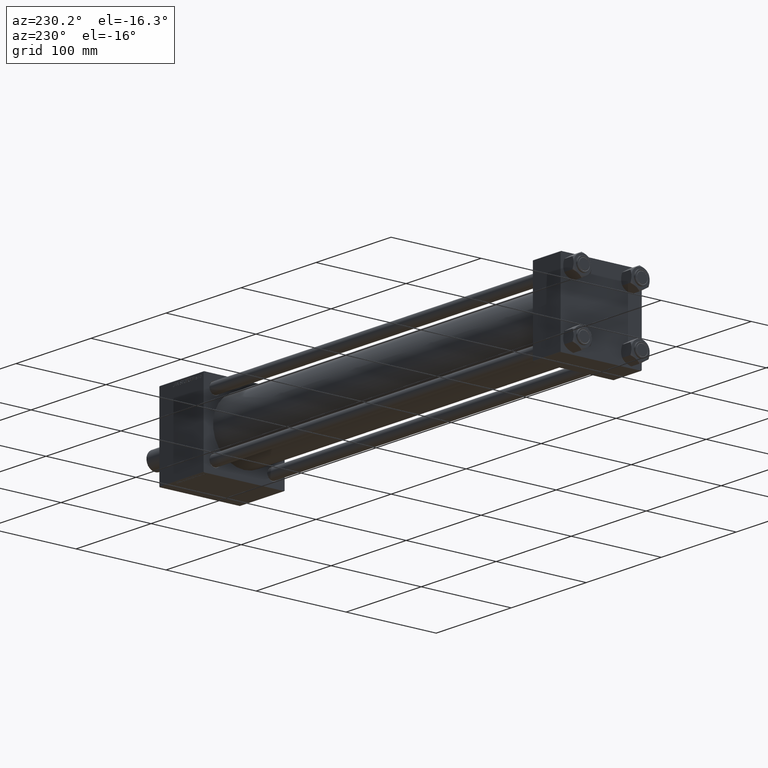
[diagram: clean part render]
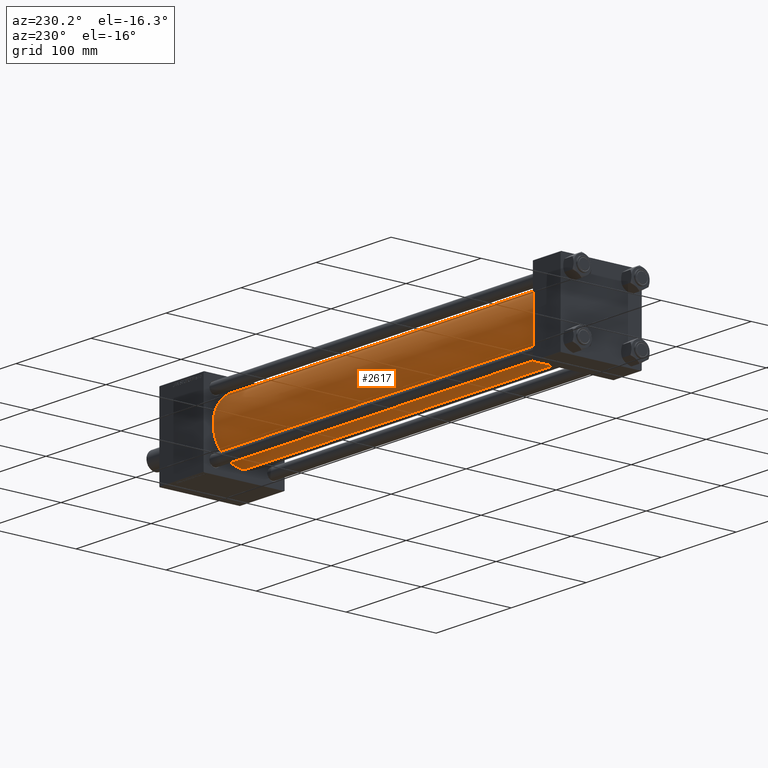
[diagram: same view with one face highlighted and labeled with its STEP entity id]
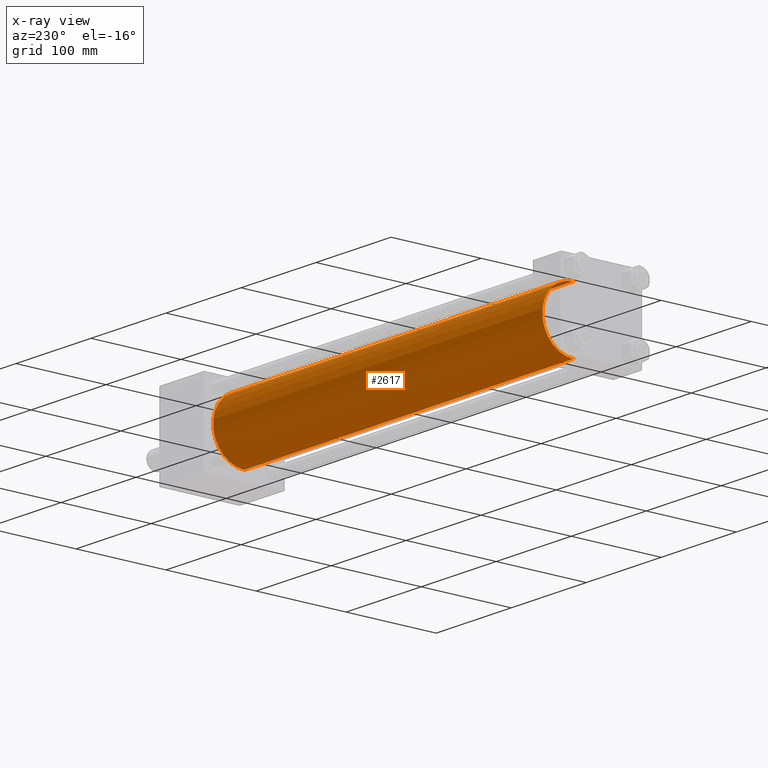
[diagram: x-ray of the same camera — body ghosted, the highlighted face saturated]
A machine part, auxiliary view. The second image highlights one B-rep face of the part: STEP entity #2617.
The next image is the same camera in x-ray: the body ghosted, the highlighted face saturated — about 0% of this face is hidden behind the body in this view.
In plain terms, the highlighted cylindrical surface (partial cylindrical patch) has radius 34.5 mm, axis along (-1, -0, -0).
Its self-contained STEP definition (entity closure, byte-faithful):
#2617 = ADVANCED_FACE ( 'NONE', ( #32635 ), #17274, .T. ) ;
#3806 = DIRECTION ( 'NONE',  ( 0.000000000000000000, 0.000000000000000000, 1.000000000000000000 ) ) ;
#3986 = CARTESIAN_POINT ( 'NONE',  ( 36.99999999999997868, 1.622946243093158675E-15, -34.50000000000000000 ) ) ;
#4529 = EDGE_CURVE ( 'NONE', #49904, #25687, #10082, .T. ) ;
#4587 = VECTOR ( 'NONE', #6335, 1000.000000000000000 ) ;
#6335 = DIRECTION ( 'NONE',  ( -1.000000000000000000, -0.000000000000000000, -0.000000000000000000 ) ) ;
#6473 = EDGE_LOOP ( 'NONE', ( #28750, #25308, #20534, #44355 ) ) ;
#8244 = CARTESIAN_POINT ( 'NONE',  ( 476.0000000000000000, -2.602085213965210642E-15, 34.50000000000000000 ) ) ;
#8428 = AXIS2_PLACEMENT_3D ( 'NONE', #24719, #24979, #3806 ) ;
#10082 = CIRCLE ( 'NONE', #8428, 34.50000000000000000 ) ;
#11519 = CARTESIAN_POINT ( 'NONE',  ( 476.0000000000000000, 1.622946243093158675E-15, -34.50000000000000000 ) ) ;
#11808 = EDGE_CURVE ( 'NONE', #34008, #49904, #13264, .T. ) ;
#13264 = LINE ( 'NONE', #28891, #4587 ) ;
#16054 = CARTESIAN_POINT ( 'NONE',  ( 476.0000000000000000, -2.602085213965210642E-15, 34.50000000000000000 ) ) ;
#17274 = CYLINDRICAL_SURFACE ( 'NONE', #44412, 34.50000000000000000 ) ;
#20429 = EDGE_CURVE ( 'NONE', #35628, #25687, #38879, .T. ) ;
#20534 = ORIENTED_EDGE ( 'NONE', *, *, #4529, .T. ) ;
#20681 = CARTESIAN_POINT ( 'NONE',  ( 36.99999999999997868, -2.602085213965210642E-15, 34.50000000000000000 ) ) ;
#24335 = EDGE_CURVE ( 'NONE', #34008, #35628, #37626, .T. ) ;
#24719 = CARTESIAN_POINT ( 'NONE',  ( 36.99999999999997868, -2.602085213965210642E-15, 0.000000000000000000 ) ) ;
#24979 = DIRECTION ( 'NONE',  ( 1.000000000000000000, -0.000000000000000000, 0.000000000000000000 ) ) ;
#25212 = DIRECTION ( 'NONE',  ( 0.000000000000000000, 0.000000000000000000, 1.000000000000000000 ) ) ;
#25308 = ORIENTED_EDGE ( 'NONE', *, *, #11808, .T. ) ;
#25687 = VERTEX_POINT ( 'NONE', #20681 ) ;
#28750 = ORIENTED_EDGE ( 'NONE', *, *, #24335, .F. ) ;
#28891 = CARTESIAN_POINT ( 'NONE',  ( 476.0000000000000000, 1.622946243093158675E-15, -34.50000000000000000 ) ) ;
#29056 = DIRECTION ( 'NONE',  ( -1.000000000000000000, -0.000000000000000000, -0.000000000000000000 ) ) ;
#30263 = AXIS2_PLACEMENT_3D ( 'NONE', #30348, #42399, #37790 ) ;
#30348 = CARTESIAN_POINT ( 'NONE',  ( 476.0000000000000000, -2.602085213965210642E-15, 0.000000000000000000 ) ) ;
#32635 = FACE_OUTER_BOUND ( 'NONE', #6473, .T. ) ;
#32887 = CARTESIAN_POINT ( 'NONE',  ( 476.0000000000000000, -2.602085213965210642E-15, 0.000000000000000000 ) ) ;
#34008 = VERTEX_POINT ( 'NONE', #11519 ) ;
#35628 = VERTEX_POINT ( 'NONE', #8244 ) ;
#37626 = CIRCLE ( 'NONE', #30263, 34.50000000000000000 ) ;
#37790 = DIRECTION ( 'NONE',  ( 0.000000000000000000, 0.000000000000000000, -1.000000000000000000 ) ) ;
#38879 = LINE ( 'NONE', #16054, #39132 ) ;
#39132 = VECTOR ( 'NONE', #39375, 1000.000000000000000 ) ;
#39375 = DIRECTION ( 'NONE',  ( -1.000000000000000000, -0.000000000000000000, -0.000000000000000000 ) ) ;
#42399 = DIRECTION ( 'NONE',  ( 1.000000000000000000, 0.000000000000000000, 0.000000000000000000 ) ) ;
#44355 = ORIENTED_EDGE ( 'NONE', *, *, #20429, .F. ) ;
#44412 = AXIS2_PLACEMENT_3D ( 'NONE', #32887, #29056, #25212 ) ;
#49904 = VERTEX_POINT ( 'NONE', #3986 ) ;